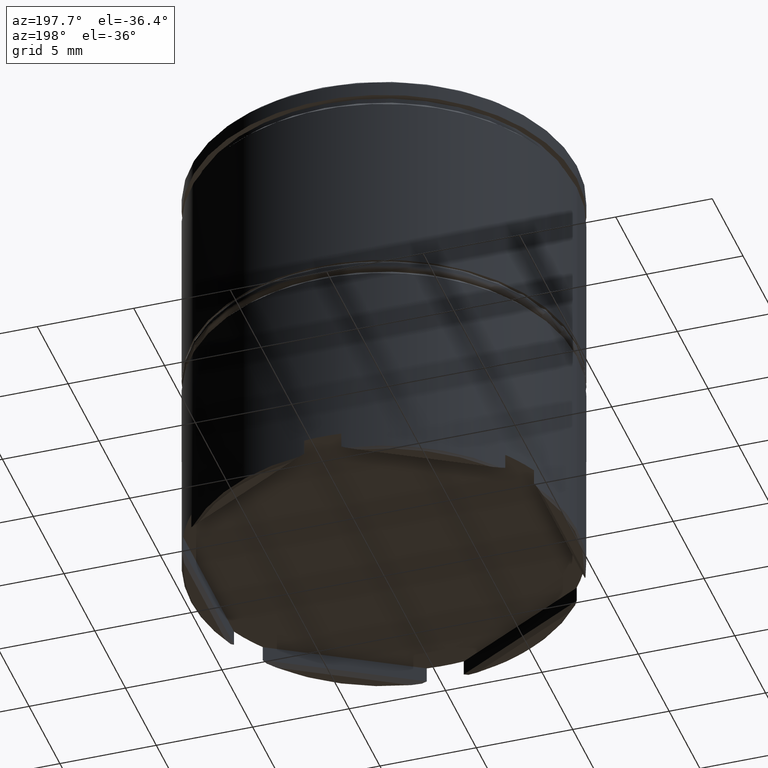
[diagram: clean part render]
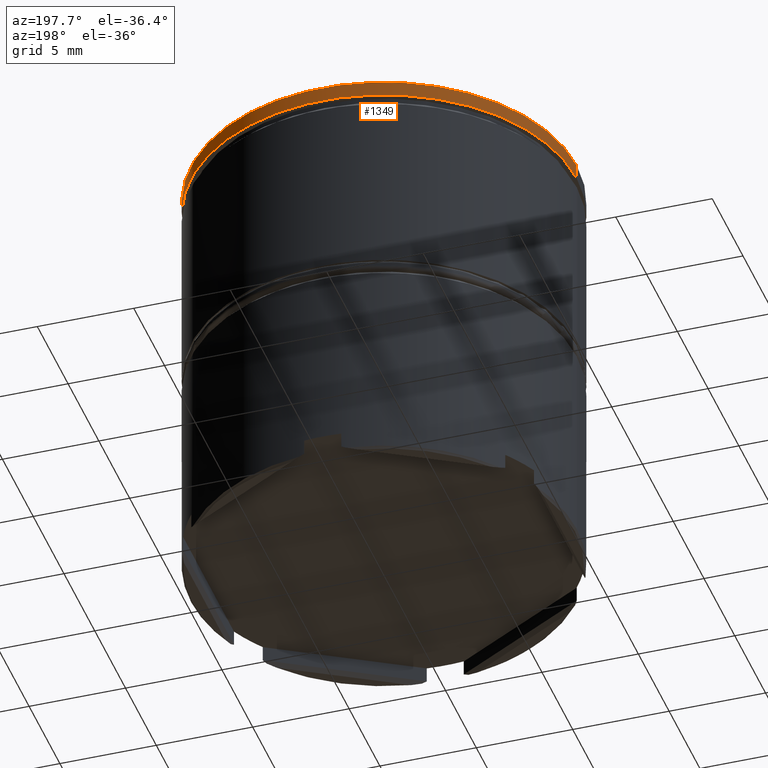
[diagram: same view with one face highlighted and labeled with its STEP entity id]
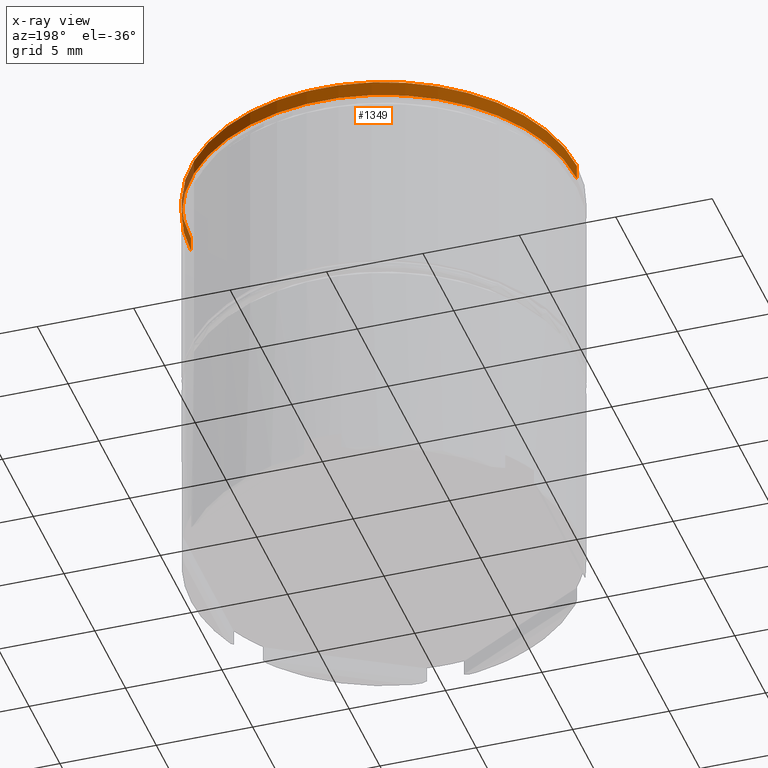
[diagram: x-ray of the same camera — body ghosted, the highlighted face saturated]
A machine part, auxiliary view. The second image highlights one B-rep face of the part: STEP entity #1349.
The next image is the same camera in x-ray: the body ghosted, the highlighted face saturated — about 2% of this face is hidden behind the body in this view.
In plain terms, the highlighted cylindrical surface (partial cylindrical patch) has radius 10 mm, axis along (-0, -0, 1).
Its self-contained STEP definition (entity closure, byte-faithful):
#9 = AXIS2_PLACEMENT_3D ( 'NONE', #973, #589, #1114 ) ;
#15 = EDGE_CURVE ( 'NONE', #20, #618, #1544, .T. ) ;
#20 = VERTEX_POINT ( 'NONE', #436 ) ;
#78 = EDGE_CURVE ( 'NONE', #528, #1167, #577, .T. ) ;
#125 = ORIENTED_EDGE ( 'NONE', *, *, #78, .T. ) ;
#171 = VECTOR ( 'NONE', #1347, 1000.000000000000000 ) ;
#326 = LINE ( 'NONE', #830, #171 ) ;
#359 = ORIENTED_EDGE ( 'NONE', *, *, #15, .T. ) ;
#436 = CARTESIAN_POINT ( 'NONE',  ( -10.00000000000000000, 1.224646799147353256E-15, -0.1000000000000011297 ) ) ;
#440 = LINE ( 'NONE', #445, #680 ) ;
#445 = CARTESIAN_POINT ( 'NONE',  ( 10.00000000000000000, 0.000000000000000000, 0.000000000000000000 ) ) ;
#458 = CARTESIAN_POINT ( 'NONE',  ( -10.00000000000000000, 1.224646799147353256E-15, -0.8749999999999998890 ) ) ;
#528 = VERTEX_POINT ( 'NONE', #1111 ) ;
#537 = EDGE_LOOP ( 'NONE', ( #125, #730, #359, #704 ) ) ;
#577 = CIRCLE ( 'NONE', #9, 10.00000000000000000 ) ;
#578 = DIRECTION ( 'NONE',  ( -0.000000000000000000, -0.000000000000000000, 1.000000000000000000 ) ) ;
#589 = DIRECTION ( 'NONE',  ( -0.000000000000000000, -0.000000000000000000, 1.000000000000000000 ) ) ;
#618 = VERTEX_POINT ( 'NONE', #1137 ) ;
#651 = FACE_OUTER_BOUND ( 'NONE', #537, .T. ) ;
#668 = DIRECTION ( 'NONE',  ( -0.000000000000000000, -0.000000000000000000, 1.000000000000000000 ) ) ;
#680 = VECTOR ( 'NONE', #578, 1000.000000000000000 ) ;
#704 = ORIENTED_EDGE ( 'NONE', *, *, #1462, .F. ) ;
#730 = ORIENTED_EDGE ( 'NONE', *, *, #1146, .T. ) ;
#830 = CARTESIAN_POINT ( 'NONE',  ( -10.00000000000000000, 1.224646799147353256E-15, 0.000000000000000000 ) ) ;
#969 = AXIS2_PLACEMENT_3D ( 'NONE', #1224, #1579, #1205 ) ;
#973 = CARTESIAN_POINT ( 'NONE',  ( 0.000000000000000000, 0.000000000000000000, -0.8749999999999998890 ) ) ;
#1111 = CARTESIAN_POINT ( 'NONE',  ( 10.00000000000000000, 0.000000000000000000, -0.8749999999999998890 ) ) ;
#1114 = DIRECTION ( 'NONE',  ( 1.000000000000000000, 0.000000000000000000, 0.000000000000000000 ) ) ;
#1137 = CARTESIAN_POINT ( 'NONE',  ( 10.00000000000000000, 0.000000000000000000, -0.1000000000000011297 ) ) ;
#1146 = EDGE_CURVE ( 'NONE', #1167, #20, #326, .T. ) ;
#1165 = CYLINDRICAL_SURFACE ( 'NONE', #1523, 10.00000000000000000 ) ;
#1167 = VERTEX_POINT ( 'NONE', #458 ) ;
#1177 = DIRECTION ( 'NONE',  ( 1.000000000000000000, 0.000000000000000000, 0.000000000000000000 ) ) ;
#1205 = DIRECTION ( 'NONE',  ( 1.000000000000000000, 0.000000000000000000, 0.000000000000000000 ) ) ;
#1224 = CARTESIAN_POINT ( 'NONE',  ( 0.000000000000000000, 0.000000000000000000, -0.1000000000000011297 ) ) ;
#1285 = CARTESIAN_POINT ( 'NONE',  ( 0.000000000000000000, 0.000000000000000000, 0.000000000000000000 ) ) ;
#1347 = DIRECTION ( 'NONE',  ( -0.000000000000000000, -0.000000000000000000, 1.000000000000000000 ) ) ;
#1349 = ADVANCED_FACE ( 'NONE', ( #651 ), #1165, .T. ) ;
#1462 = EDGE_CURVE ( 'NONE', #528, #618, #440, .T. ) ;
#1523 = AXIS2_PLACEMENT_3D ( 'NONE', #1285, #668, #1177 ) ;
#1544 = CIRCLE ( 'NONE', #969, 10.00000000000000000 ) ;
#1579 = DIRECTION ( 'NONE',  ( 0.000000000000000000, 0.000000000000000000, -1.000000000000000000 ) ) ;